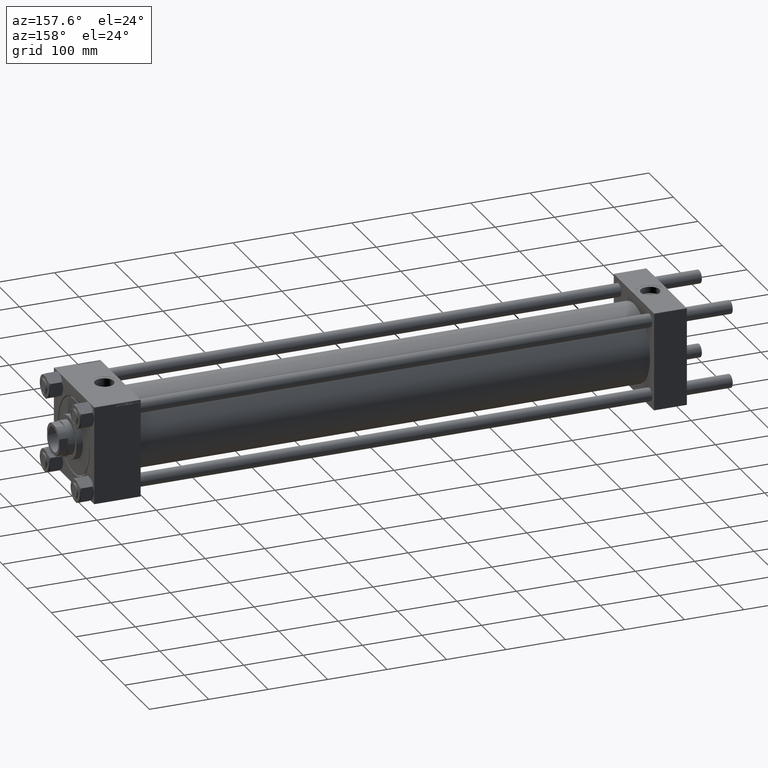
[diagram: clean part render]
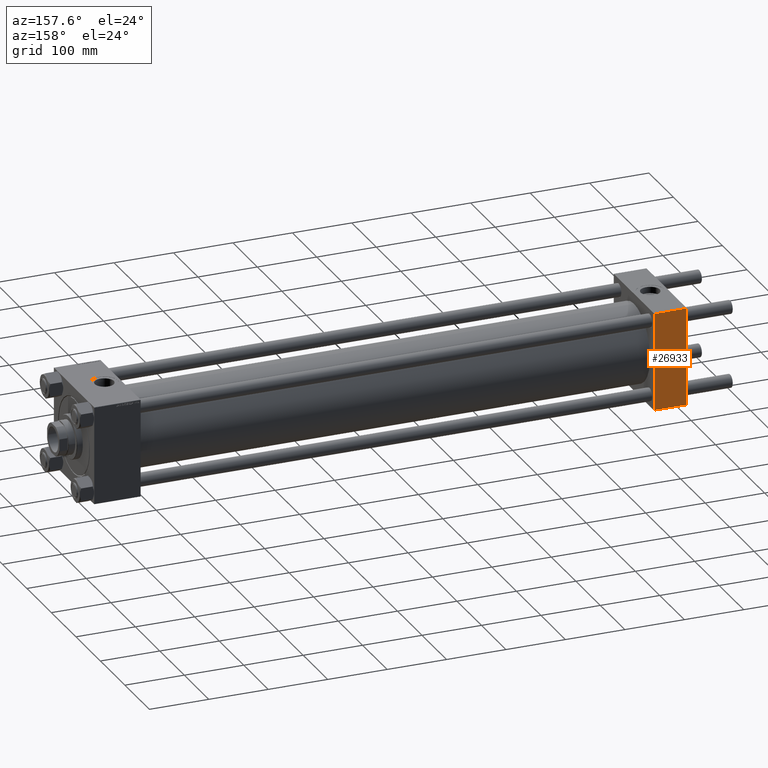
[diagram: same view with one face highlighted and labeled with its STEP entity id]
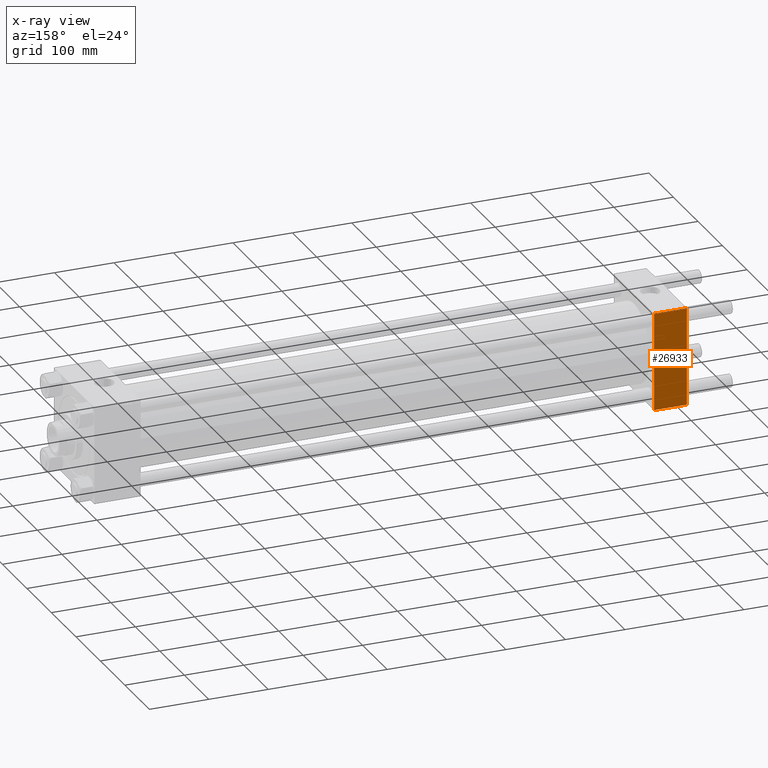
[diagram: x-ray of the same camera — body ghosted, the highlighted face saturated]
A machine part, auxiliary view. The second image highlights one B-rep face of the part: STEP entity #26933.
The next image is the same camera in x-ray: the body ghosted, the highlighted face saturated — about 0% of this face is hidden behind the body in this view.
In plain terms, the highlighted planar face has unit normal (0, 1, 0).
Its self-contained STEP definition (entity closure, byte-faithful):
#139 = EDGE_LOOP ( 'NONE', ( #8901, #24783, #43747, #42046 ) ) ;
#4264 = CARTESIAN_POINT ( 'NONE',  ( 55.00000000000000000, 82.50000000000002842, 82.00000000000005684 ) ) ;
#5360 = EDGE_CURVE ( 'NONE', #37542, #36662, #20976, .T. ) ;
#8901 = ORIENTED_EDGE ( 'NONE', *, *, #5360, .T. ) ;
#9726 = EDGE_CURVE ( 'NONE', #13573, #28689, #19340, .T. ) ;
#10198 = AXIS2_PLACEMENT_3D ( 'NONE', #35858, #27480, #35094 ) ;
#10242 = CARTESIAN_POINT ( 'NONE',  ( 0.000000000000000000, 82.50000000000002842, -82.00000000000000000 ) ) ;
#10420 = LINE ( 'NONE', #25929, #38699 ) ;
#11368 = VECTOR ( 'NONE', #36207, 1000.000000000000000 ) ;
#11455 = CARTESIAN_POINT ( 'NONE',  ( 0.000000000000000000, 82.50000000000002842, 82.50000000000002842 ) ) ;
#13573 = VERTEX_POINT ( 'NONE', #19396 ) ;
#14806 = EDGE_CURVE ( 'NONE', #13573, #37542, #22596, .T. ) ;
#17157 = CARTESIAN_POINT ( 'NONE',  ( 55.00000000000000000, 82.50000000000002842, 82.50000000000002842 ) ) ;
#18308 = DIRECTION ( 'NONE',  ( -1.000000000000000000, 0.000000000000000000, 0.000000000000000000 ) ) ;
#18888 = VECTOR ( 'NONE', #37340, 1000.000000000000000 ) ;
#19340 = LINE ( 'NONE', #11455, #44719 ) ;
#19396 = CARTESIAN_POINT ( 'NONE',  ( 0.000000000000000000, 82.50000000000002842, 82.00000000000005684 ) ) ;
#20106 = FACE_OUTER_BOUND ( 'NONE', #139, .T. ) ;
#20976 = LINE ( 'NONE', #17157, #11368 ) ;
#22596 = LINE ( 'NONE', #29734, #18888 ) ;
#24783 = ORIENTED_EDGE ( 'NONE', *, *, #39499, .T. ) ;
#25929 = CARTESIAN_POINT ( 'NONE',  ( 55.00000000000000000, 82.50000000000002842, -82.00000000000000000 ) ) ;
#26933 = ADVANCED_FACE ( 'NONE', ( #20106 ), #31282, .T. ) ;
#27480 = DIRECTION ( 'NONE',  ( -0.000000000000000000, 1.000000000000000000, 0.000000000000000000 ) ) ;
#28689 = VERTEX_POINT ( 'NONE', #10242 ) ;
#29734 = CARTESIAN_POINT ( 'NONE',  ( 55.00000000000000000, 82.50000000000002842, 82.00000000000005684 ) ) ;
#31282 = PLANE ( 'NONE',  #10198 ) ;
#35094 = DIRECTION ( 'NONE',  ( 0.000000000000000000, -0.000000000000000000, 1.000000000000000000 ) ) ;
#35858 = CARTESIAN_POINT ( 'NONE',  ( 55.00000000000000000, 82.50000000000002842, 82.50000000000002842 ) ) ;
#36207 = DIRECTION ( 'NONE',  ( 0.000000000000000000, 0.000000000000000000, -1.000000000000000000 ) ) ;
#36662 = VERTEX_POINT ( 'NONE', #36834 ) ;
#36834 = CARTESIAN_POINT ( 'NONE',  ( 55.00000000000000000, 82.50000000000002842, -82.00000000000000000 ) ) ;
#37340 = DIRECTION ( 'NONE',  ( 1.000000000000000000, 0.000000000000000000, 0.000000000000000000 ) ) ;
#37542 = VERTEX_POINT ( 'NONE', #4264 ) ;
#38699 = VECTOR ( 'NONE', #18308, 1000.000000000000000 ) ;
#39499 = EDGE_CURVE ( 'NONE', #36662, #28689, #10420, .T. ) ;
#42046 = ORIENTED_EDGE ( 'NONE', *, *, #14806, .T. ) ;
#43747 = ORIENTED_EDGE ( 'NONE', *, *, #9726, .F. ) ;
#44719 = VECTOR ( 'NONE', #46805, 1000.000000000000000 ) ;
#46805 = DIRECTION ( 'NONE',  ( 0.000000000000000000, 0.000000000000000000, -1.000000000000000000 ) ) ;